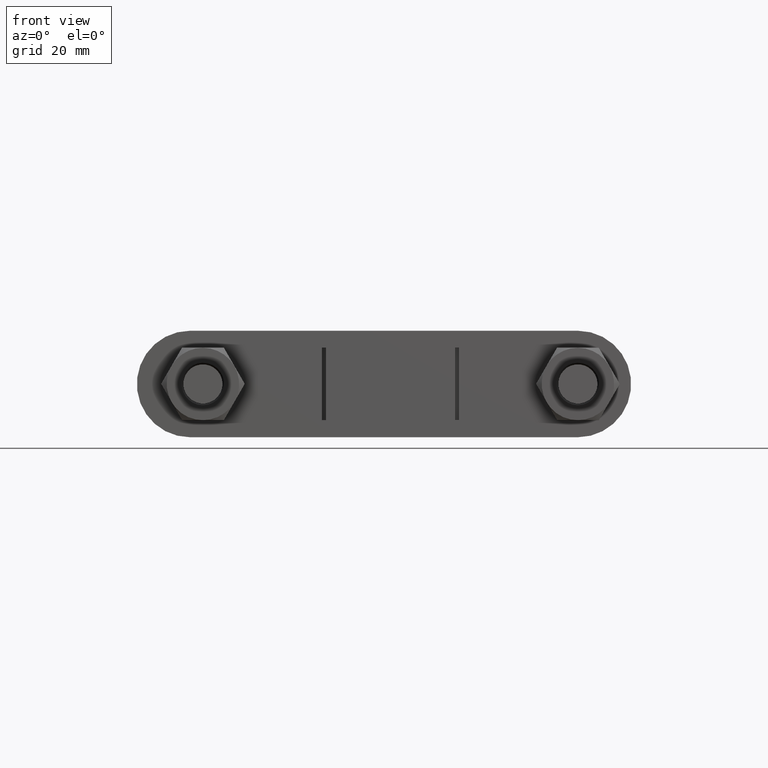
[diagram: clean part render]
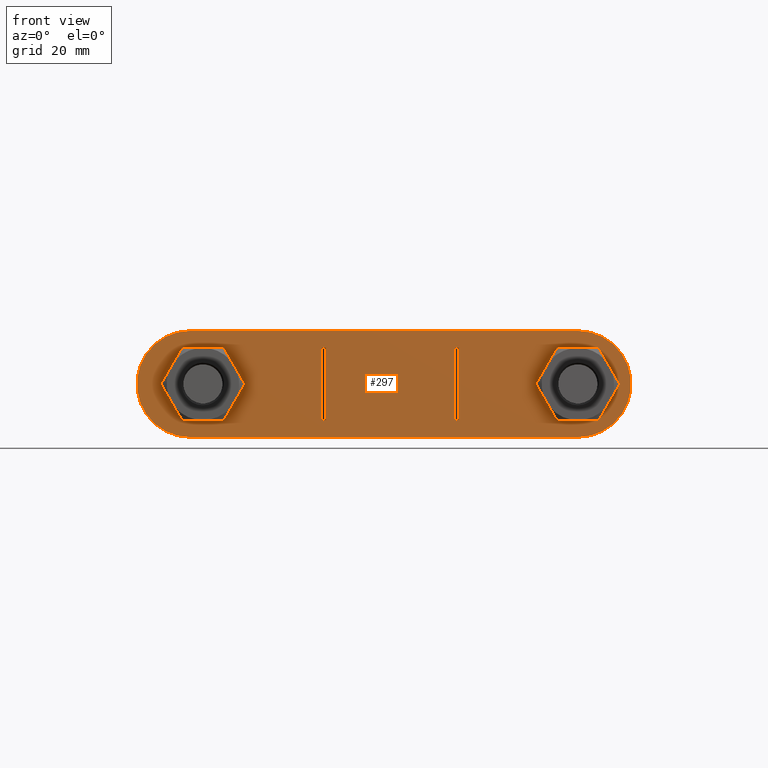
[diagram: same view with one face highlighted and labeled with its STEP entity id]
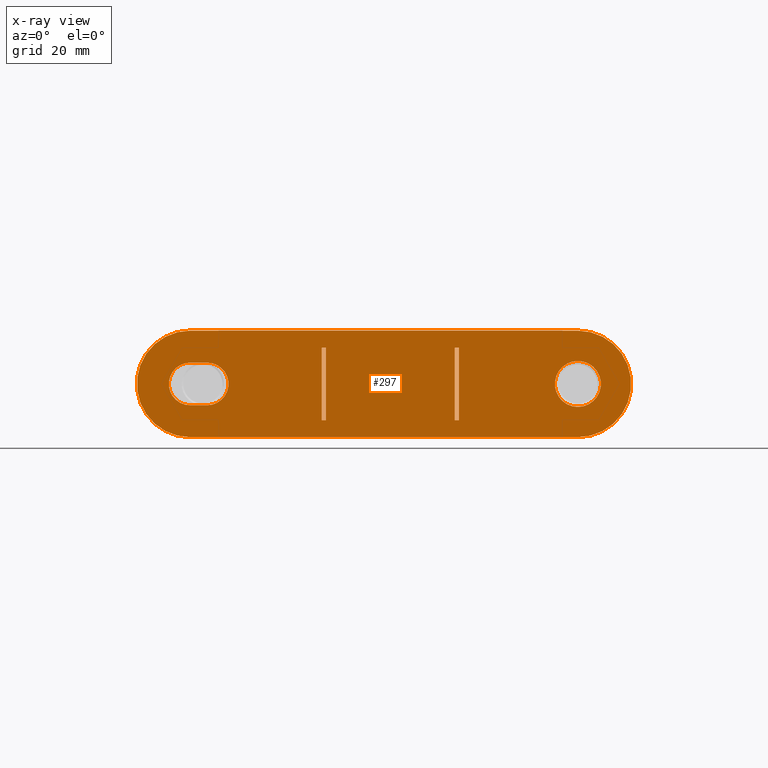
[diagram: x-ray of the same camera — body ghosted, the highlighted face saturated]
A machine part, front view. The second image highlights one B-rep face of the part: STEP entity #297.
The next image is the same camera in x-ray: the body ghosted, the highlighted face saturated — about 0% of this face is hidden behind the body in this view.
In plain terms, the highlighted planar face has unit normal (0, 1, -0).
Its self-contained STEP definition (entity closure, byte-faithful):
#297 = ADVANCED_FACE( '', ( #449, #450, #451, #452, #453 ), #454, .F. );
#449 = FACE_OUTER_BOUND( '', #1527, .T. );
#450 = FACE_BOUND( '', #1528, .T. );
#451 = FACE_BOUND( '', #1529, .T. );
#452 = FACE_BOUND( '', #1530, .T. );
#453 = FACE_BOUND( '', #1531, .T. );
#454 = PLANE( '', #1532 );
#1527 = EDGE_LOOP( '', ( #1902, #1903, #1904, #1905 ) );
#1528 = EDGE_LOOP( '', ( #1906, #1907, #1908, #1909 ) );
#1529 = EDGE_LOOP( '', ( #1910 ) );
#1530 = EDGE_LOOP( '', ( #1911, #1912, #1913, #1914 ) );
#1531 = EDGE_LOOP( '', ( #1915, #1916, #1917, #1918 ) );
#1532 = AXIS2_PLACEMENT_3D( '', #1919, #1920, #1921 );
#1902 = ORIENTED_EDGE( '', *, *, #2565, .F. );
#1903 = ORIENTED_EDGE( '', *, *, #2566, .F. );
#1904 = ORIENTED_EDGE( '', *, *, #2567, .F. );
#1905 = ORIENTED_EDGE( '', *, *, #2568, .F. );
#1906 = ORIENTED_EDGE( '', *, *, #2569, .F. );
#1907 = ORIENTED_EDGE( '', *, *, #2570, .T. );
#1908 = ORIENTED_EDGE( '', *, *, #2571, .T. );
#1909 = ORIENTED_EDGE( '', *, *, #2572, .F. );
#1910 = ORIENTED_EDGE( '', *, *, #2573, .T. );
#1911 = ORIENTED_EDGE( '', *, *, #2574, .F. );
#1912 = ORIENTED_EDGE( '', *, *, #2575, .F. );
#1913 = ORIENTED_EDGE( '', *, *, #2576, .F. );
#1914 = ORIENTED_EDGE( '', *, *, #2577, .F. );
#1915 = ORIENTED_EDGE( '', *, *, #2578, .T. );
#1916 = ORIENTED_EDGE( '', *, *, #2579, .T. );
#1917 = ORIENTED_EDGE( '', *, *, #2580, .F. );
#1918 = ORIENTED_EDGE( '', *, *, #2581, .F. );
#1919 = CARTESIAN_POINT( '', ( -47.0000000000000, 35.0000000000000, 1.16510696489133E-011 ) );
#1920 = DIRECTION( '', ( 7.10926701388587E-032, 1.00000000000000, -1.48458090479487E-015 ) );
#1921 = DIRECTION( '', ( 1.00000000000000, -1.09476442525376E-047, 4.78873666697753E-017 ) );
#2565 = EDGE_CURVE( '', #2829, #2830, #2831, .T. );
#2566 = EDGE_CURVE( '', #2832, #2829, #2833, .F. );
#2567 = EDGE_CURVE( '', #2834, #2832, #2835, .T. );
#2568 = EDGE_CURVE( '', #2830, #2834, #2836, .F. );
#2569 = EDGE_CURVE( '', #2837, #2838, #2839, .F. );
#2570 = EDGE_CURVE( '', #2837, #2840, #2841, .T. );
#2571 = EDGE_CURVE( '', #2840, #2842, #2843, .T. );
#2572 = EDGE_CURVE( '', #2838, #2842, #2844, .T. );
#2573 = EDGE_CURVE( '', #2845, #2845, #2846, .T. );
#2574 = EDGE_CURVE( '', #2847, #2848, #2849, .F. );
#2575 = EDGE_CURVE( '', #2850, #2847, #2851, .T. );
#2576 = EDGE_CURVE( '', #2852, #2850, #2853, .F. );
#2577 = EDGE_CURVE( '', #2848, #2852, #2854, .T. );
#2578 = EDGE_CURVE( '', #2855, #2856, #2857, .F. );
#2579 = EDGE_CURVE( '', #2856, #2858, #2859, .T. );
#2580 = EDGE_CURVE( '', #2860, #2858, #2861, .T. );
#2581 = EDGE_CURVE( '', #2855, #2860, #2862, .T. );
#2829 = VERTEX_POINT( '', #3476 );
#2830 = VERTEX_POINT( '', #3477 );
#2831 = CIRCLE( '', #3478, 12.5000000000000 );
#2832 = VERTEX_POINT( '', #3479 );
#2833 = LINE( '', #3480, #3481 );
#2834 = VERTEX_POINT( '', #3482 );
#2835 = CIRCLE( '', #3483, 12.5000000000000 );
#2836 = LINE( '', #3484, #3485 );
#2837 = VERTEX_POINT( '', #3486 );
#2838 = VERTEX_POINT( '', #3487 );
#2839 = LINE( '', #3488, #3489 );
#2840 = VERTEX_POINT( '', #3490 );
#2841 = LINE( '', #3491, #3492 );
#2842 = VERTEX_POINT( '', #3493 );
#2843 = LINE( '', #3494, #3495 );
#2844 = LINE( '', #3496, #3497 );
#2845 = VERTEX_POINT( '', #3498 );
#2846 = CIRCLE( '', #3499, 5.40000000000000 );
#2847 = VERTEX_POINT( '', #3500 );
#2848 = VERTEX_POINT( '', #3501 );
#2849 = CIRCLE( '', #3502, 5.00000000000000 );
#2850 = VERTEX_POINT( '', #3503 );
#2851 = LINE( '', #3504, #3505 );
#2852 = VERTEX_POINT( '', #3506 );
#2853 = CIRCLE( '', #3507, 5.00000000000000 );
#2854 = LINE( '', #3508, #3509 );
#2855 = VERTEX_POINT( '', #3510 );
#2856 = VERTEX_POINT( '', #3511 );
#2857 = LINE( '', #3512, #3513 );
#2858 = VERTEX_POINT( '', #3514 );
#2859 = LINE( '', #3515, #3516 );
#2860 = VERTEX_POINT( '', #3517 );
#2861 = LINE( '', #3518, #3519 );
#2862 = LINE( '', #3520, #3521 );
#3476 = CARTESIAN_POINT( '', ( -47.0000000000031, 35.0000000000000, -12.4999999999883 ) );
#3477 = CARTESIAN_POINT( '', ( -46.9999999999985, 35.0000000000000, 12.5000000000116 ) );
#3478 = AXIS2_PLACEMENT_3D( '', #4078, #4079, #4080 );
#3479 = CARTESIAN_POINT( '', ( 43.9999999999970, 35.0000000000000, -12.5000000000109 ) );
#3480 = CARTESIAN_POINT( '', ( 43.9999999999970, 35.0000000000000, -12.5000000000109 ) );
#3481 = VECTOR( '', #4081, 1000.00000000000 );
#3482 = CARTESIAN_POINT( '', ( 44.0000000000015, 35.0000000000000, 12.5000000000004 ) );
#3483 = AXIS2_PLACEMENT_3D( '', #4082, #4083, #4084 );
#3484 = CARTESIAN_POINT( '', ( -46.9999999999969, 35.0000000000000, 12.5000000000116 ) );
#3485 = VECTOR( '', #4085, 1000.00000000000 );
#3486 = CARTESIAN_POINT( '', ( -16.1000000000021, 35.0000000000000, -8.49999999999600 ) );
#3487 = CARTESIAN_POINT( '', ( -15.1000000000021, 35.0000000000000, -8.49999999999600 ) );
#3488 = CARTESIAN_POINT( '', ( -16.1000000000021, 35.0000000000000, -8.49999999999600 ) );
#3489 = VECTOR( '', #4086, 1000.00000000000 );
#3490 = CARTESIAN_POINT( '', ( -16.0999999999979, 35.0000000000000, 8.50000000000400 ) );
#3491 = CARTESIAN_POINT( '', ( -16.1000000000000, 35.0000000000000, 3.99715561475988E-012 ) );
#3492 = VECTOR( '', #4087, 1000.00000000000 );
#3493 = CARTESIAN_POINT( '', ( -15.0999999999979, 35.0000000000000, 8.50000000000400 ) );
#3494 = CARTESIAN_POINT( '', ( -47.0000000000000, 35.0000000000000, 8.50000000000400 ) );
#3495 = VECTOR( '', #4088, 1000.00000000000 );
#3496 = CARTESIAN_POINT( '', ( -15.1000000000021, 35.0000000000000, -8.49999999999625 ) );
#3497 = VECTOR( '', #4089, 1000.00000000000 );
#3498 = CARTESIAN_POINT( '', ( 44.0000000000000, 35.0000000000000, 5.39999999998912 ) );
#3499 = AXIS2_PLACEMENT_3D( '', #4090, #4091, #4092 );
#3500 = CARTESIAN_POINT( '', ( -46.9999999999994, 35.0000000000000, 5.00000000001116 ) );
#3501 = CARTESIAN_POINT( '', ( -47.0000000000012, 35.0000000000000, -4.99999999998835 ) );
#3502 = AXIS2_PLACEMENT_3D( '', #4093, #4094, #4095 );
#3503 = CARTESIAN_POINT( '', ( -42.9999999999994, 35.0000000000000, 5.00000000001066 ) );
#3504 = CARTESIAN_POINT( '', ( -42.9999999999988, 35.0000000000000, 5.00000000001066 ) );
#3505 = VECTOR( '', #4096, 1000.00000000000 );
#3506 = CARTESIAN_POINT( '', ( -43.0000000000012, 35.0000000000000, -4.99999999998934 ) );
#3507 = AXIS2_PLACEMENT_3D( '', #4097, #4098, #4099 );
#3508 = CARTESIAN_POINT( '', ( -47.0000000000012, 35.0000000000000, -4.99999999998835 ) );
#3509 = VECTOR( '', #4100, 1000.00000000000 );
#3510 = CARTESIAN_POINT( '', ( 16.0999999999979, 35.0000000000000, -8.50000000000398 ) );
#3511 = CARTESIAN_POINT( '', ( 15.0999999999979, 35.0000000000000, -8.50000000000398 ) );
#3512 = CARTESIAN_POINT( '', ( -47.0000000000000, 35.0000000000000, -8.50000000000398 ) );
#3513 = VECTOR( '', #4101, 1000.00000000000 );
#3514 = CARTESIAN_POINT( '', ( 15.1000000000021, 35.0000000000000, 8.49999999999603 ) );
#3515 = CARTESIAN_POINT( '', ( 15.1000000000000, 35.0000000000000, -3.71619546164411E-012 ) );
#3516 = VECTOR( '', #4102, 1000.00000000000 );
#3517 = CARTESIAN_POINT( '', ( 16.1000000000021, 35.0000000000000, 8.49999999999602 ) );
#3518 = CARTESIAN_POINT( '', ( 16.1000000000021, 35.0000000000000, 8.49999999999603 ) );
#3519 = VECTOR( '', #4103, 1000.00000000000 );
#3520 = CARTESIAN_POINT( '', ( 16.0999999999979, 35.0000000000000, -8.50000000000398 ) );
#3521 = VECTOR( '', #4104, 1000.00000000000 );
#4078 = CARTESIAN_POINT( '', ( -47.0000000000000, 35.0000000000000, 1.16510696489133E-011 ) );
#4079 = DIRECTION( '', ( 7.10926701388587E-032, 1.00000000000000, -1.48458090479487E-015 ) );
#4080 = DIRECTION( '', ( 0.000000000000000, 1.48458090479487E-015, 1.00000000000000 ) );
#4081 = DIRECTION( '', ( 1.00000000000000, -3.67623238910543E-028, -2.47579734491594E-013 ) );
#4082 = CARTESIAN_POINT( '', ( 44.0000000000000, 35.0000000000000, -1.08752167428699E-011 ) );
#4083 = DIRECTION( '', ( 7.10926701388587E-032, 1.00000000000000, -1.48458090479487E-015 ) );
#4084 = DIRECTION( '', ( 0.000000000000000, 1.48458090479487E-015, 1.00000000000000 ) );
#4085 = DIRECTION( '', ( -1.00000000000000, 7.10926701394044E-032, 3.67552146255582E-028 ) );
#4086 = DIRECTION( '', ( -1.00000000000000, 7.10926701394860E-032, 4.22543487817514E-028 ) );
#4087 = DIRECTION( '', ( 2.47699483305936E-013, 1.48458090479487E-015, 1.00000000000000 ) );
#4088 = DIRECTION( '', ( 1.00000000000000, -7.10926701394860E-032, -4.22543487817514E-028 ) );
#4089 = DIRECTION( '', ( 2.47699483305936E-013, 1.48458090479487E-015, 1.00000000000000 ) );
#4090 = CARTESIAN_POINT( '', ( 44.0000000000000, 35.0000000000000, -1.08769514663458E-011 ) );
#4091 = DIRECTION( '', ( 7.10926701388587E-032, 1.00000000000000, -1.48458090479487E-015 ) );
#4092 = DIRECTION( '', ( 0.000000000000000, 1.48458090479487E-015, 1.00000000000000 ) );
#4093 = CARTESIAN_POINT( '', ( -47.0000000000000, 35.0000000000000, 1.16528043723893E-011 ) );
#4094 = DIRECTION( '', ( 7.10926701388587E-032, 1.00000000000000, -1.48458090479487E-015 ) );
#4095 = DIRECTION( '', ( 0.000000000000000, 1.48458090479487E-015, 1.00000000000000 ) );
#4096 = DIRECTION( '', ( -1.00000000000000, 7.10926701394044E-032, 3.67552146255582E-028 ) );
#4097 = CARTESIAN_POINT( '', ( -43.0000000000000, 35.0000000000000, 1.06624854344229E-011 ) );
#4098 = DIRECTION( '', ( 7.10926701388587E-032, 1.00000000000000, -1.48458090479487E-015 ) );
#4099 = DIRECTION( '', ( 0.000000000000000, 1.48458090479487E-015, 1.00000000000000 ) );
#4100 = DIRECTION( '', ( 1.00000000000000, -3.67623238910543E-028, -2.47579734491594E-013 ) );
#4101 = DIRECTION( '', ( 1.00000000000000, -7.10926701394860E-032, -4.22543487817514E-028 ) );
#4102 = DIRECTION( '', ( 2.47459985677253E-013, 1.48458090479487E-015, 1.00000000000000 ) );
#4103 = DIRECTION( '', ( -1.00000000000000, 7.10926701394860E-032, 4.22543487817514E-028 ) );
#4104 = DIRECTION( '', ( 2.47459985677253E-013, 1.48458090479487E-015, 1.00000000000000 ) );